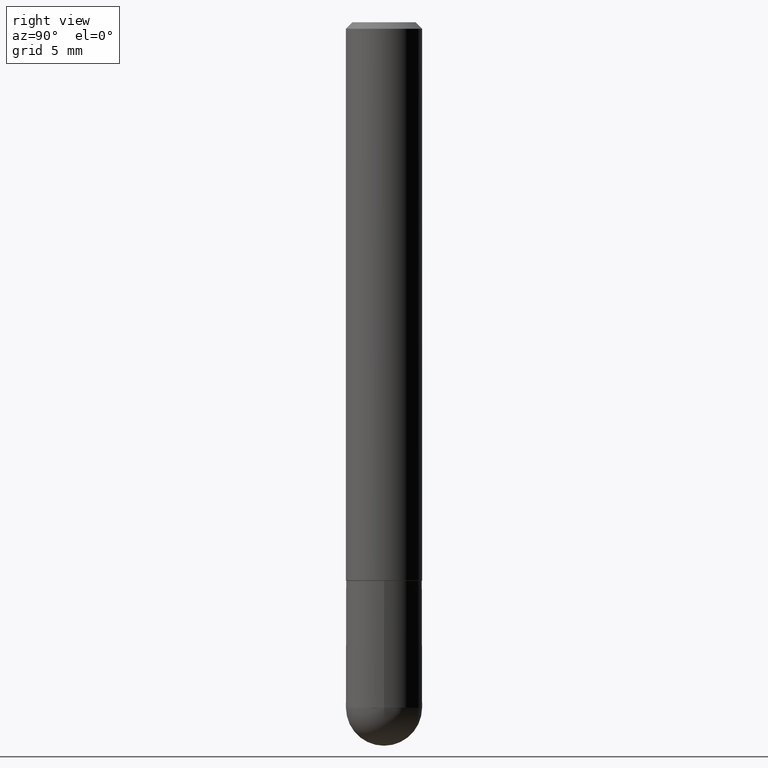
[diagram: clean part render]
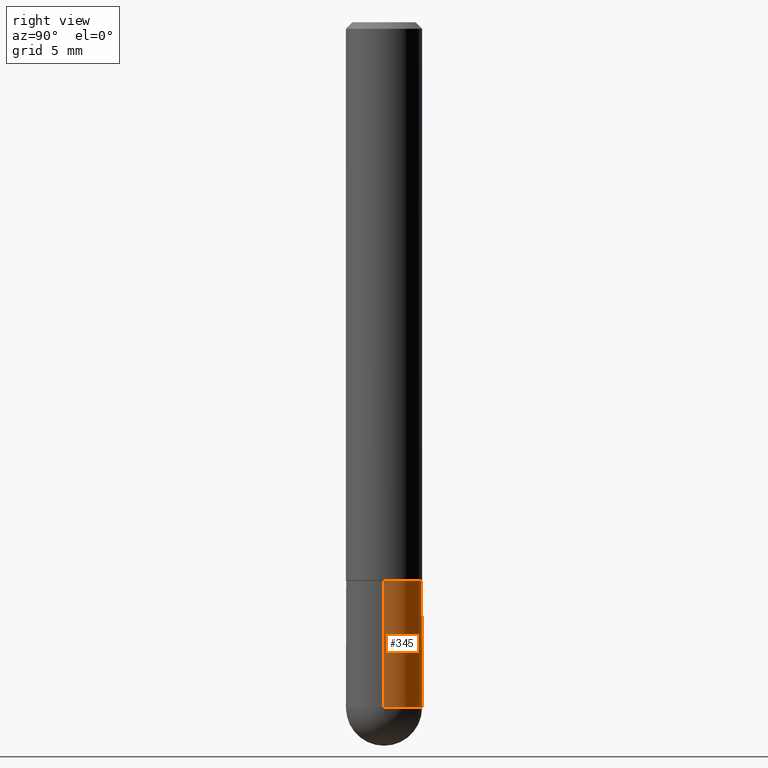
[diagram: same view with one face highlighted and labeled with its STEP entity id]
A machine part, right view. The second image highlights one B-rep face of the part: STEP entity #345.
In plain terms, the highlighted cylindrical surface (partial cylindrical patch) has radius 2.9997 mm, axis along (-0, 0, 1).
Its self-contained STEP definition (entity closure, byte-faithful):
#1 = VERTEX_POINT ( 'NONE', #303 ) ;
#3 = AXIS2_PLACEMENT_3D ( 'NONE', #348, #98, #255 ) ;
#5 = FACE_OUTER_BOUND ( 'NONE', #219, .T. ) ;
#9 = DIRECTION ( 'NONE',  ( 1.000000000000000000, -6.982962677686265133E-15, 0.000000000000000000 ) ) ;
#10 = VECTOR ( 'NONE', #81, 39.37007874015748143 ) ;
#12 = EDGE_CURVE ( 'NONE', #335, #212, #366, .T. ) ;
#18 = ORIENTED_EDGE ( 'NONE', *, *, #208, .T. ) ;
#27 = CARTESIAN_POINT ( 'NONE',  ( -0.1180999999999999966, -5.896440253896576052E-15, -1.732299999999999951 ) ) ;
#43 = CARTESIAN_POINT ( 'NONE',  ( 4.236285612954512392E-29, -6.048293123277981078E-15, -1.732299999999999951 ) ) ;
#61 = CARTESIAN_POINT ( 'NONE',  ( 8.246878922347992427E-16, 0.1180999999999924471, -2.126000000000000334 ) ) ;
#63 = AXIS2_PLACEMENT_3D ( 'NONE', #43, #365, #9 ) ;
#67 = CARTESIAN_POINT ( 'NONE',  ( 0.1180999999999999966, -6.872981015512729341E-15, -1.732299999999999951 ) ) ;
#68 = ORIENTED_EDGE ( 'NONE', *, *, #12, .F. ) ;
#81 = DIRECTION ( 'NONE',  ( -2.445468806185136877E-29, 3.491481338843145188E-15, 1.000000000000000000 ) ) ;
#98 = DIRECTION ( 'NONE',  ( -2.445468806185136597E-29, 3.491481338843145583E-15, 1.000000000000000000 ) ) ;
#132 = CARTESIAN_POINT ( 'NONE',  ( -0.1180999999999999966, 8.391509709326782957E-16, -5.809262341591043784E-30 ) ) ;
#136 = EDGE_CURVE ( 'NONE', #212, #340, #298, .T. ) ;
#150 = CARTESIAN_POINT ( 'NONE',  ( 0.1180999999999999966, -8.246878922347480654E-16, 5.758764772215000440E-30 ) ) ;
#158 = LINE ( 'NONE', #132, #398 ) ;
#182 = ORIENTED_EDGE ( 'NONE', *, *, #136, .F. ) ;
#187 = AXIS2_PLACEMENT_3D ( 'NONE', #264, #357, #189 ) ;
#189 = DIRECTION ( 'NONE',  ( 1.000000000000000000, -6.982962677686265133E-15, 0.000000000000000000 ) ) ;
#191 = CARTESIAN_POINT ( 'NONE',  ( 0.1180999999999999966, -7.560279117064003300E-15, -2.125999999999999890 ) ) ;
#208 = EDGE_CURVE ( 'NONE', #232, #1, #407, .T. ) ;
#212 = VERTEX_POINT ( 'NONE', #67 ) ;
#218 = EDGE_CURVE ( 'NONE', #1, #340, #158, .T. ) ;
#219 = EDGE_LOOP ( 'NONE', ( #18, #334, #182, #68, #399 ) ) ;
#232 = VERTEX_POINT ( 'NONE', #61 ) ;
#252 = DIRECTION ( 'NONE',  ( -2.445468806185136597E-29, 3.491481338843145583E-15, 1.000000000000000000 ) ) ;
#255 = DIRECTION ( 'NONE',  ( 1.000000000000000000, -6.982962677686266711E-15, 4.876176775795936353E-29 ) ) ;
#256 = CARTESIAN_POINT ( 'NONE',  ( 5.199066681949599750E-29, -7.422889326380526631E-15, -2.125999999999999890 ) ) ;
#264 = CARTESIAN_POINT ( 'NONE',  ( 5.199066681949599750E-29, -7.422889326380526631E-15, -2.125999999999999890 ) ) ;
#298 = CIRCLE ( 'NONE', #63, 0.1180999999999999966 ) ;
#303 = CARTESIAN_POINT ( 'NONE',  ( -0.1180999999999999966, -5.896440253896576841E-15, -2.125999999999999890 ) ) ;
#311 = DIRECTION ( 'NONE',  ( 1.000000000000000000, -6.982962677686265133E-15, 0.000000000000000000 ) ) ;
#313 = CYLINDRICAL_SURFACE ( 'NONE', #3, 0.1180999999999999966 ) ;
#324 = AXIS2_PLACEMENT_3D ( 'NONE', #256, #252, #311 ) ;
#331 = CIRCLE ( 'NONE', #187, 0.1180999999999999966 ) ;
#332 = EDGE_CURVE ( 'NONE', #335, #232, #331, .T. ) ;
#334 = ORIENTED_EDGE ( 'NONE', *, *, #218, .T. ) ;
#335 = VERTEX_POINT ( 'NONE', #191 ) ;
#340 = VERTEX_POINT ( 'NONE', #27 ) ;
#345 = ADVANCED_FACE ( 'NONE', ( #5 ), #313, .T. ) ;
#348 = CARTESIAN_POINT ( 'NONE',  ( 0.000000000000000000, 0.000000000000000000, 0.000000000000000000 ) ) ;
#357 = DIRECTION ( 'NONE',  ( -2.445468806185136597E-29, 3.491481338843145583E-15, 1.000000000000000000 ) ) ;
#365 = DIRECTION ( 'NONE',  ( -2.445468806185136597E-29, 3.491481338843145583E-15, 1.000000000000000000 ) ) ;
#366 = LINE ( 'NONE', #150, #10 ) ;
#377 = DIRECTION ( 'NONE',  ( -2.445468806185136877E-29, 3.491481338843145188E-15, 1.000000000000000000 ) ) ;
#398 = VECTOR ( 'NONE', #377, 39.37007874015748143 ) ;
#399 = ORIENTED_EDGE ( 'NONE', *, *, #332, .T. ) ;
#407 = CIRCLE ( 'NONE', #324, 0.1180999999999999966 ) ;